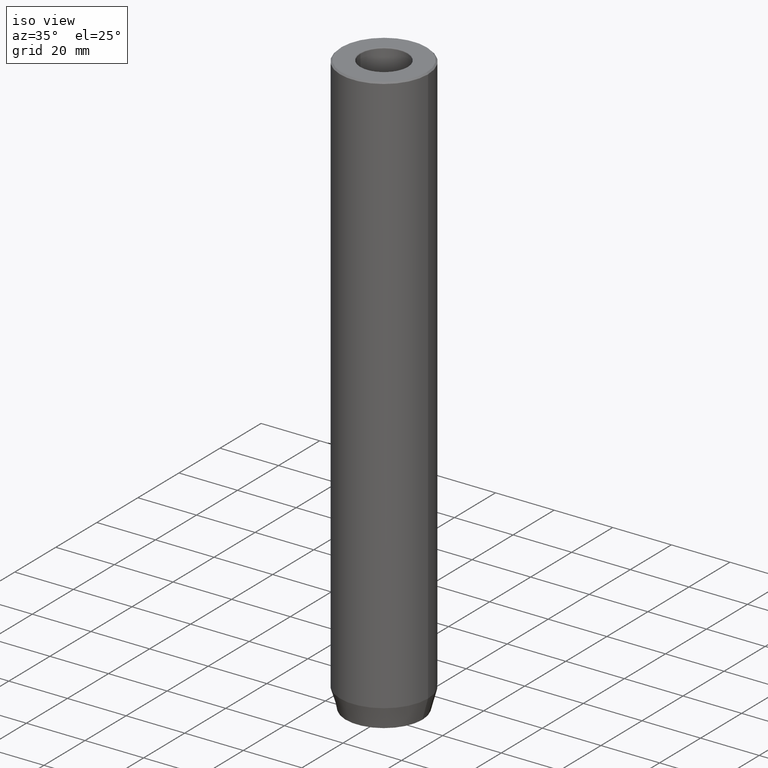
[diagram: clean part render]
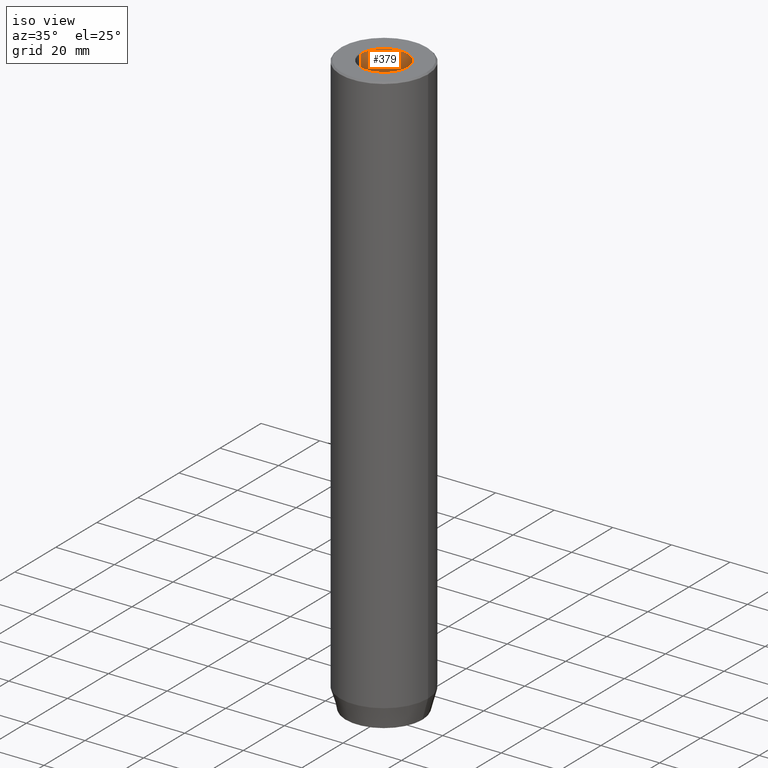
[diagram: same view with one face highlighted and labeled with its STEP entity id]
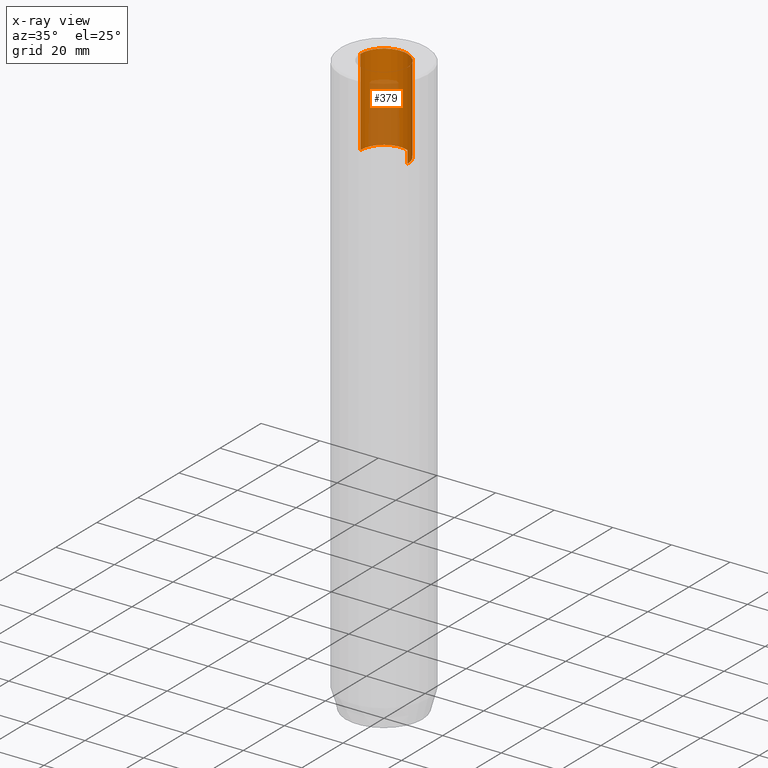
[diagram: x-ray of the same camera — body ghosted, the highlighted face saturated]
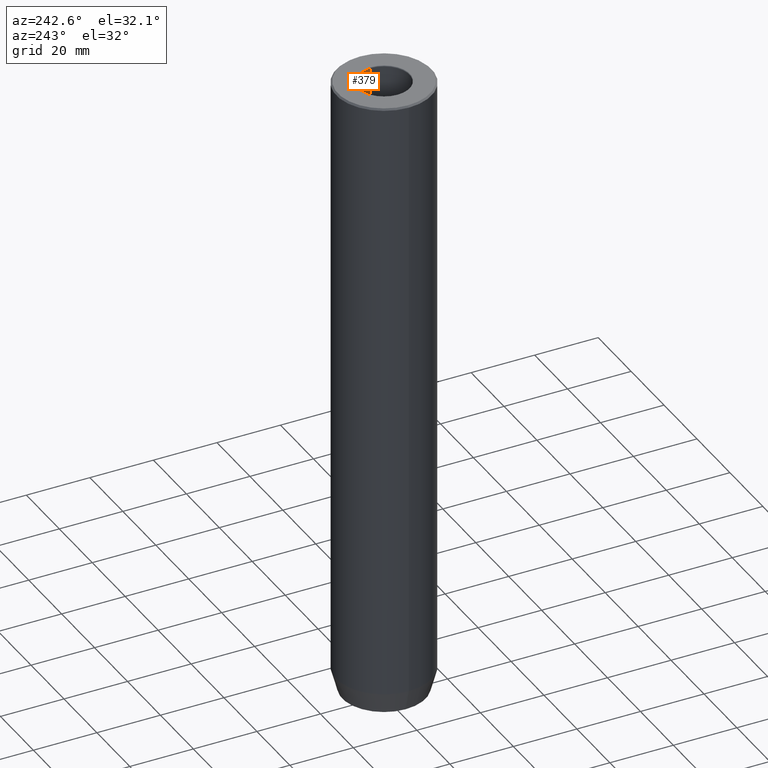
[diagram: same view with one face highlighted and labeled with its STEP entity id]
A machine part, iso view. The second image highlights one B-rep face of the part: STEP entity #379.
The next image is the same camera in x-ray: the body ghosted, the highlighted face saturated — about 39% of this face is hidden behind the body in this view.
A second angle (auxiliary view) of the same face is appended — the face is thin or edge-on in the first view.
In plain terms, the highlighted cylindrical surface (edge-blend (fillet) strip) has radius 8 mm, axis along (-0, -0, 1).
Its self-contained STEP definition (entity closure, byte-faithful):
#11 = CIRCLE ( 'NONE', #462, 7.999999999999996447 ) ;
#29 = CYLINDRICAL_SURFACE ( 'NONE', #443, 7.999999999999996447 ) ;
#41 = VERTEX_POINT ( 'NONE', #486 ) ;
#42 = AXIS2_PLACEMENT_3D ( 'NONE', #129, #183, #81 ) ;
#43 = VECTOR ( 'NONE', #67, 1000.000000000000000 ) ;
#63 = CARTESIAN_POINT ( 'NONE',  ( -7.999999999999996447, 9.797174393178821713E-16, -0.2999999999999999889 ) ) ;
#67 = DIRECTION ( 'NONE',  ( -0.000000000000000000, -0.000000000000000000, 1.000000000000000000 ) ) ;
#71 = ORIENTED_EDGE ( 'NONE', *, *, #243, .F. ) ;
#81 = DIRECTION ( 'NONE',  ( 1.000000000000000000, 0.000000000000000000, 0.000000000000000000 ) ) ;
#103 = EDGE_LOOP ( 'NONE', ( #249, #71, #573, #274 ) ) ;
#129 = CARTESIAN_POINT ( 'NONE',  ( 0.000000000000000000, 0.000000000000000000, -30.00000000000000000 ) ) ;
#179 = CIRCLE ( 'NONE', #42, 7.999999999999994671 ) ;
#183 = DIRECTION ( 'NONE',  ( -0.000000000000000000, -0.000000000000000000, 1.000000000000000000 ) ) ;
#208 = CARTESIAN_POINT ( 'NONE',  ( 7.999999999999996447, 0.000000000000000000, 0.000000000000000000 ) ) ;
#222 = DIRECTION ( 'NONE',  ( -0.000000000000000000, -0.000000000000000000, 1.000000000000000000 ) ) ;
#243 = EDGE_CURVE ( 'NONE', #359, #41, #179, .T. ) ;
#246 = DIRECTION ( 'NONE',  ( 1.000000000000000000, 0.000000000000000000, 0.000000000000000000 ) ) ;
#249 = ORIENTED_EDGE ( 'NONE', *, *, #350, .F. ) ;
#274 = ORIENTED_EDGE ( 'NONE', *, *, #439, .T. ) ;
#279 = DIRECTION ( 'NONE',  ( 1.000000000000000000, 0.000000000000000000, 0.000000000000000000 ) ) ;
#316 = DIRECTION ( 'NONE',  ( -0.000000000000000000, -0.000000000000000000, 1.000000000000000000 ) ) ;
#349 = CARTESIAN_POINT ( 'NONE',  ( 0.000000000000000000, 0.000000000000000000, -0.2999999999999999889 ) ) ;
#350 = EDGE_CURVE ( 'NONE', #41, #608, #613, .T. ) ;
#359 = VERTEX_POINT ( 'NONE', #579 ) ;
#373 = CARTESIAN_POINT ( 'NONE',  ( 0.000000000000000000, 0.000000000000000000, 0.000000000000000000 ) ) ;
#379 = ADVANCED_FACE ( 'NONE', ( #529 ), #29, .F. ) ;
#386 = CARTESIAN_POINT ( 'NONE',  ( -7.999999999999996447, 9.797174393178821713E-16, 0.000000000000000000 ) ) ;
#392 = VECTOR ( 'NONE', #316, 1000.000000000000000 ) ;
#422 = VERTEX_POINT ( 'NONE', #483 ) ;
#439 = EDGE_CURVE ( 'NONE', #422, #608, #11, .T. ) ;
#440 = DIRECTION ( 'NONE',  ( -0.000000000000000000, -0.000000000000000000, 1.000000000000000000 ) ) ;
#443 = AXIS2_PLACEMENT_3D ( 'NONE', #373, #222, #279 ) ;
#462 = AXIS2_PLACEMENT_3D ( 'NONE', #349, #440, #246 ) ;
#483 = CARTESIAN_POINT ( 'NONE',  ( 7.999999999999996447, 0.000000000000000000, -0.2999999999999999889 ) ) ;
#486 = CARTESIAN_POINT ( 'NONE',  ( -7.999999999999994671, 9.797174393178819741E-16, -30.00000000000000000 ) ) ;
#529 = FACE_OUTER_BOUND ( 'NONE', #103, .T. ) ;
#573 = ORIENTED_EDGE ( 'NONE', *, *, #604, .T. ) ;
#579 = CARTESIAN_POINT ( 'NONE',  ( 7.999999999999994671, 0.000000000000000000, -30.00000000000000000 ) ) ;
#601 = LINE ( 'NONE', #208, #43 ) ;
#604 = EDGE_CURVE ( 'NONE', #359, #422, #601, .T. ) ;
#608 = VERTEX_POINT ( 'NONE', #63 ) ;
#613 = LINE ( 'NONE', #386, #392 ) ;